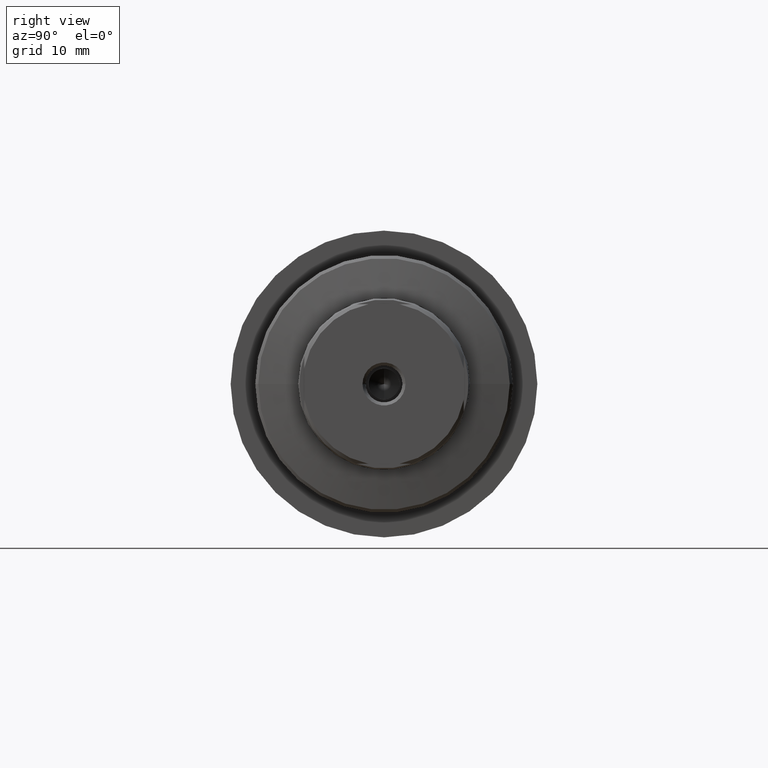
[diagram: clean part render]
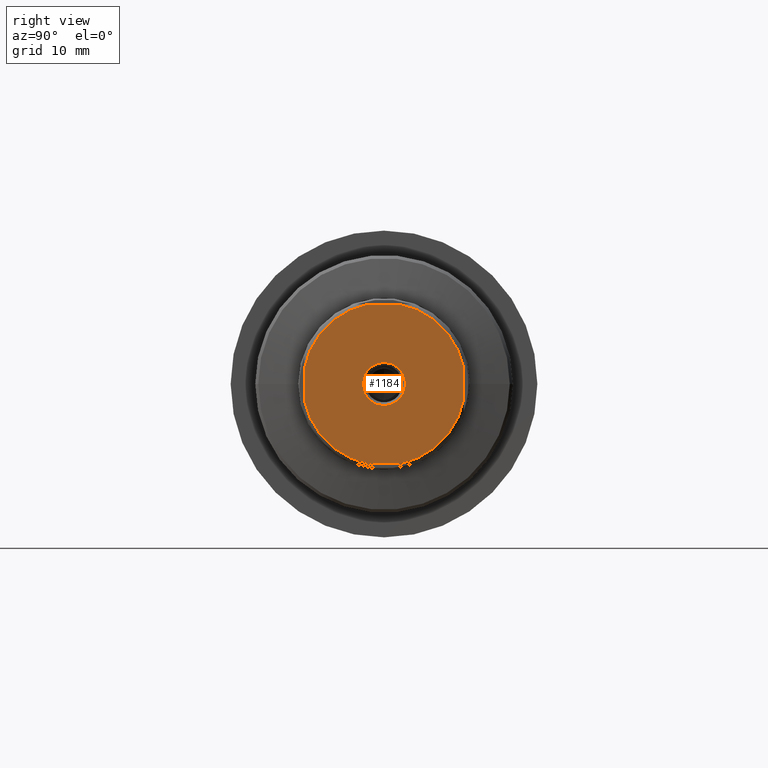
[diagram: same view with one face highlighted and labeled with its STEP entity id]
A machine part, right view. The second image highlights one B-rep face of the part: STEP entity #1184.
In plain terms, the highlighted planar face has unit normal (-1, -0, 0).
Its self-contained STEP definition (entity closure, byte-faithful):
#80 = DIRECTION ( 'NONE',  ( 1.000000000000000000, 1.069542322069065801E-17, 0.000000000000000000 ) ) ;
#90 = CARTESIAN_POINT ( 'NONE',  ( 96.00000000000000000, 8.673617379884035472E-16, 0.000000000000000000 ) ) ;
#93 = EDGE_LOOP ( 'NONE', ( #986, #1508, #454, #692, #277, #1921, #1518, #1738 ) ) ;
#149 = ORIENTED_EDGE ( 'NONE', *, *, #536, .T. ) ;
#209 = DIRECTION ( 'NONE',  ( 0.000000000000000000, 3.872912908332501010E-16, -1.000000000000000000 ) ) ;
#211 = VERTEX_POINT ( 'NONE', #1390 ) ;
#275 = EDGE_CURVE ( 'NONE', #379, #338, #2315, .T. ) ;
#277 = ORIENTED_EDGE ( 'NONE', *, *, #843, .F. ) ;
#278 = DIRECTION ( 'NONE',  ( -1.000000000000000000, -1.069542322069065801E-17, 0.000000000000000000 ) ) ;
#305 = LINE ( 'NONE', #486, #1987 ) ;
#338 = VERTEX_POINT ( 'NONE', #2127 ) ;
#360 = EDGE_CURVE ( 'NONE', #795, #211, #528, .T. ) ;
#362 = LINE ( 'NONE', #1773, #1189 ) ;
#379 = VERTEX_POINT ( 'NONE', #1971 ) ;
#387 = CARTESIAN_POINT ( 'NONE',  ( 96.00000000000000000, -1.590974207512541602E-12, 0.000000000000000000 ) ) ;
#422 = CARTESIAN_POINT ( 'NONE',  ( 96.00000000000000000, -1.590974207512541602E-12, 0.000000000000000000 ) ) ;
#445 = FACE_OUTER_BOUND ( 'NONE', #93, .T. ) ;
#454 = ORIENTED_EDGE ( 'NONE', *, *, #360, .F. ) ;
#486 = CARTESIAN_POINT ( 'NONE',  ( 96.00000000000007105, 4.479118216790648255, -12.99999999999999822 ) ) ;
#513 = CARTESIAN_POINT ( 'NONE',  ( 96.00000000000000000, 1.026760629186303218E-15, 0.000000000000000000 ) ) ;
#528 = LINE ( 'NONE', #2147, #1974 ) ;
#536 = EDGE_CURVE ( 'NONE', #338, #379, #709, .T. ) ;
#642 = VERTEX_POINT ( 'NONE', #1373 ) ;
#692 = ORIENTED_EDGE ( 'NONE', *, *, #2184, .T. ) ;
#709 = CIRCLE ( 'NONE', #2020, 3.500000000000375699 ) ;
#729 = DIRECTION ( 'NONE',  ( 1.549165163333000246E-14, 1.000000000000000000, 1.936456454166250505E-16 ) ) ;
#733 = CARTESIAN_POINT ( 'NONE',  ( 95.99999999999995737, -2.561737691489791136, -13.00000000000000000 ) ) ;
#768 = DIRECTION ( 'NONE',  ( 0.000000000000000000, -1.000000000000000000, 0.000000000000000000 ) ) ;
#786 = EDGE_CURVE ( 'NONE', #1781, #642, #362, .T. ) ;
#795 = VERTEX_POINT ( 'NONE', #1226 ) ;
#802 = DIRECTION ( 'NONE',  ( 1.069542322069065801E-17, -1.000000000000000000, 0.000000000000000000 ) ) ;
#810 = EDGE_LOOP ( 'NONE', ( #2291, #149 ) ) ;
#832 = CIRCLE ( 'NONE', #1118, 13.24999999999997691 ) ;
#843 = EDGE_CURVE ( 'NONE', #2280, #1609, #1255, .T. ) ;
#844 = CARTESIAN_POINT ( 'NONE',  ( 96.00000000000004263, 2.561737691489861746, 13.00000000000000000 ) ) ;
#882 = CARTESIAN_POINT ( 'NONE',  ( 95.99999999999995737, -2.561737691489785362, 13.00000000000000000 ) ) ;
#986 = ORIENTED_EDGE ( 'NONE', *, *, #2065, .F. ) ;
#1115 = CIRCLE ( 'NONE', #1155, 13.25000000000001243 ) ;
#1118 = AXIS2_PLACEMENT_3D ( 'NONE', #1515, #80, #2244 ) ;
#1124 = CARTESIAN_POINT ( 'NONE',  ( 96.00000000000000000, 1.026760629186303218E-15, 0.000000000000000000 ) ) ;
#1155 = AXIS2_PLACEMENT_3D ( 'NONE', #1124, #1841, #1366 ) ;
#1181 = DIRECTION ( 'NONE',  ( -1.549165163333000246E-14, -1.000000000000000000, -1.936456454166250505E-16 ) ) ;
#1184 = ADVANCED_FACE ( 'NONE', ( #1905, #445 ), #1681, .F. ) ;
#1189 = VECTOR ( 'NONE', #1976, 1000.000000000000000 ) ;
#1226 = CARTESIAN_POINT ( 'NONE',  ( 96.00000000000000000, 12.99999999999840661, 2.561737691497941505 ) ) ;
#1241 = DIRECTION ( 'NONE',  ( 1.000000000000000000, 1.069542322069065801E-17, 0.000000000000000000 ) ) ;
#1255 = LINE ( 'NONE', #1958, #1490 ) ;
#1363 = CARTESIAN_POINT ( 'NONE',  ( 96.00000000000004263, 2.561737691489977653, -12.99999999999999822 ) ) ;
#1366 = DIRECTION ( 'NONE',  ( 0.000000000000000000, -1.000000000000000000, 0.000000000000000000 ) ) ;
#1373 = CARTESIAN_POINT ( 'NONE',  ( 95.99999999999978684, -13.00000000000159162, 2.561737691481699830 ) ) ;
#1390 = CARTESIAN_POINT ( 'NONE',  ( 96.00000000000022737, 12.99999999999841016, -2.561737691498041869 ) ) ;
#1400 = DIRECTION ( 'NONE',  ( 0.000000000000000000, -1.000000000000000000, 0.000000000000000000 ) ) ;
#1459 = AXIS2_PLACEMENT_3D ( 'NONE', #513, #1241, #2095 ) ;
#1490 = VECTOR ( 'NONE', #729, 1000.000000000000000 ) ;
#1502 = DIRECTION ( 'NONE',  ( -1.000000000000000000, -1.069542322069065801E-17, -0.000000000000000000 ) ) ;
#1508 = ORIENTED_EDGE ( 'NONE', *, *, #1542, .T. ) ;
#1515 = CARTESIAN_POINT ( 'NONE',  ( 96.00000000000000000, 1.026760629186303218E-15, 0.000000000000000000 ) ) ;
#1518 = ORIENTED_EDGE ( 'NONE', *, *, #786, .F. ) ;
#1542 = EDGE_CURVE ( 'NONE', #2039, #211, #1115, .T. ) ;
#1609 = VERTEX_POINT ( 'NONE', #844 ) ;
#1617 = EDGE_CURVE ( 'NONE', #1781, #1932, #1949, .T. ) ;
#1639 = AXIS2_PLACEMENT_3D ( 'NONE', #90, #278, #802 ) ;
#1681 = PLANE ( 'NONE',  #1639 ) ;
#1725 = DIRECTION ( 'NONE',  ( 0.000000000000000000, -1.000000000000000000, 0.000000000000000000 ) ) ;
#1735 = CARTESIAN_POINT ( 'NONE',  ( 96.00000000000000000, -13.00000000000158806, -2.561737691481710488 ) ) ;
#1738 = ORIENTED_EDGE ( 'NONE', *, *, #1617, .T. ) ;
#1773 = CARTESIAN_POINT ( 'NONE',  ( 95.99999999999978684, -13.00000000000158806, -4.479118216792240759 ) ) ;
#1781 = VERTEX_POINT ( 'NONE', #1735 ) ;
#1841 = DIRECTION ( 'NONE',  ( 1.000000000000000000, 1.069542322069065801E-17, 0.000000000000000000 ) ) ;
#1877 = DIRECTION ( 'NONE',  ( 1.000000000000000000, 1.069542322069065801E-17, 0.000000000000000000 ) ) ;
#1905 = FACE_BOUND ( 'NONE', #810, .T. ) ;
#1921 = ORIENTED_EDGE ( 'NONE', *, *, #2129, .T. ) ;
#1932 = VERTEX_POINT ( 'NONE', #733 ) ;
#1949 = CIRCLE ( 'NONE', #2028, 13.24999999999997691 ) ;
#1958 = CARTESIAN_POINT ( 'NONE',  ( 95.99999999999992895, -4.479118216793828822, 12.99999999999999822 ) ) ;
#1971 = CARTESIAN_POINT ( 'NONE',  ( 96.00000000000000000, 3.499999999998778755, 0.000000000000000000 ) ) ;
#1974 = VECTOR ( 'NONE', #209, 1000.000000000000000 ) ;
#1976 = DIRECTION ( 'NONE',  ( 0.000000000000000000, -3.872912908332501010E-16, 1.000000000000000000 ) ) ;
#1987 = VECTOR ( 'NONE', #1181, 1000.000000000000000 ) ;
#2020 = AXIS2_PLACEMENT_3D ( 'NONE', #422, #1502, #768 ) ;
#2028 = AXIS2_PLACEMENT_3D ( 'NONE', #2272, #1877, #1725 ) ;
#2039 = VERTEX_POINT ( 'NONE', #1363 ) ;
#2065 = EDGE_CURVE ( 'NONE', #2039, #1932, #305, .T. ) ;
#2095 = DIRECTION ( 'NONE',  ( 0.000000000000000000, -1.000000000000000000, -8.881784197001252323E-16 ) ) ;
#2120 = DIRECTION ( 'NONE',  ( -1.000000000000000000, -1.069542322069065801E-17, -0.000000000000000000 ) ) ;
#2127 = CARTESIAN_POINT ( 'NONE',  ( 96.00000000000000000, -3.500000000002087663, 4.286263797016345004E-16 ) ) ;
#2129 = EDGE_CURVE ( 'NONE', #2280, #642, #832, .T. ) ;
#2147 = CARTESIAN_POINT ( 'NONE',  ( 96.00000000000022737, 12.99999999999840661, 4.479118216792238982 ) ) ;
#2176 = CIRCLE ( 'NONE', #1459, 13.24999999999999112 ) ;
#2184 = EDGE_CURVE ( 'NONE', #795, #1609, #2176, .T. ) ;
#2204 = AXIS2_PLACEMENT_3D ( 'NONE', #387, #2120, #1400 ) ;
#2244 = DIRECTION ( 'NONE',  ( 0.000000000000000000, -1.000000000000000000, 8.881784197001252323E-16 ) ) ;
#2272 = CARTESIAN_POINT ( 'NONE',  ( 96.00000000000000000, 1.026760629186303218E-15, 0.000000000000000000 ) ) ;
#2280 = VERTEX_POINT ( 'NONE', #882 ) ;
#2291 = ORIENTED_EDGE ( 'NONE', *, *, #275, .T. ) ;
#2315 = CIRCLE ( 'NONE', #2204, 3.500000000000375699 ) ;